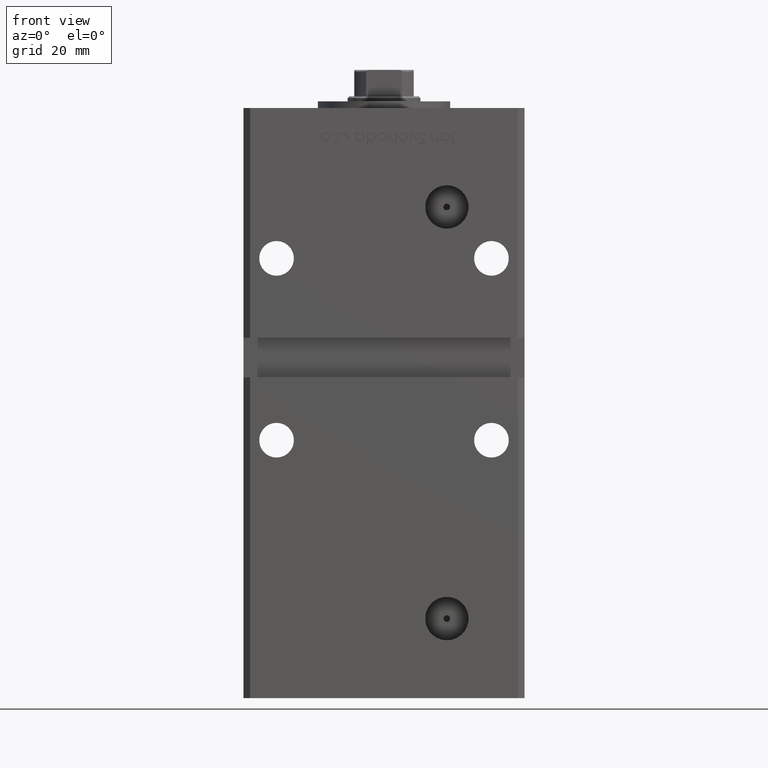
[diagram: clean part render]
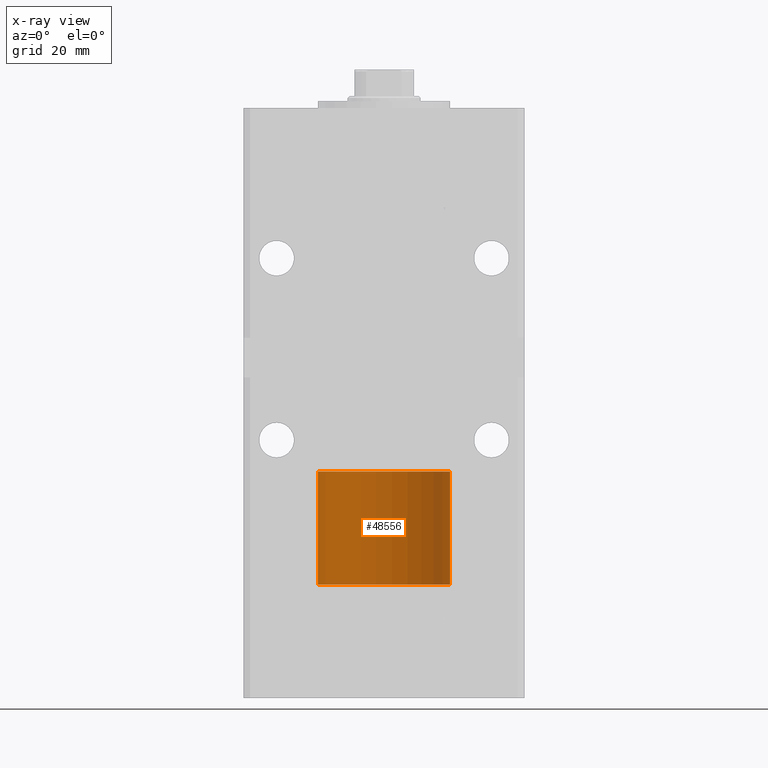
[diagram: x-ray — body ghosted, one internal face saturated and labeled with its STEP entity id]
A machine part, front view, then the same camera in x-ray: the body is ghosted and one INTERNAL B-rep face — a face not visible from any outside direction — is saturated and labeled: STEP entity #48556.
In plain terms, the highlighted cylindrical surface (partial cylindrical patch) has radius 20 mm, axis along (-0, -0, -1).
Its self-contained STEP definition (entity closure, byte-faithful):
#2169 = CARTESIAN_POINT ( 'NONE',  ( 20.00000000000000000, 2.449293598294706513E-15, 34.25000000000000000 ) ) ;
#4057 = DIRECTION ( 'NONE',  ( 0.000000000000000000, 0.000000000000000000, 1.000000000000000000 ) ) ;
#5654 = VERTEX_POINT ( 'NONE', #37147 ) ;
#7299 = EDGE_CURVE ( 'NONE', #5654, #46477, #40404, .T. ) ;
#10466 = VERTEX_POINT ( 'NONE', #49921 ) ;
#11993 = CIRCLE ( 'NONE', #16291, 20.00000000000000000 ) ;
#14292 = VECTOR ( 'NONE', #15404, 1000.000000000000000 ) ;
#15376 = CARTESIAN_POINT ( 'NONE',  ( 20.00000000000000000, 2.449293598294706513E-15, 34.25000000000000000 ) ) ;
#15404 = DIRECTION ( 'NONE',  ( -0.000000000000000000, -0.000000000000000000, -1.000000000000000000 ) ) ;
#16291 = AXIS2_PLACEMENT_3D ( 'NONE', #29176, #37764, #41535 ) ;
#16953 = VERTEX_POINT ( 'NONE', #2169 ) ;
#18681 = EDGE_LOOP ( 'NONE', ( #51628, #37257, #38012, #41700 ) ) ;
#19181 = CARTESIAN_POINT ( 'NONE',  ( -20.00000000000000000, 0.000000000000000000, 34.25000000000000000 ) ) ;
#19625 = DIRECTION ( 'NONE',  ( -0.000000000000000000, -0.000000000000000000, -1.000000000000000000 ) ) ;
#22081 = CIRCLE ( 'NONE', #41807, 20.00000000000000000 ) ;
#23720 = LINE ( 'NONE', #15376, #41549 ) ;
#23981 = DIRECTION ( 'NONE',  ( 1.000000000000000000, 0.000000000000000000, 0.000000000000000000 ) ) ;
#24442 = DIRECTION ( 'NONE',  ( -1.000000000000000000, 0.000000000000000000, 0.000000000000000000 ) ) ;
#25099 = EDGE_CURVE ( 'NONE', #16953, #5654, #11993, .T. ) ;
#28541 = CARTESIAN_POINT ( 'NONE',  ( 0.000000000000000000, 0.000000000000000000, 0.000000000000000000 ) ) ;
#29176 = CARTESIAN_POINT ( 'NONE',  ( 0.000000000000000000, 0.000000000000000000, 34.25000000000000000 ) ) ;
#31993 = FACE_OUTER_BOUND ( 'NONE', #18681, .T. ) ;
#32521 = CARTESIAN_POINT ( 'NONE',  ( 0.000000000000000000, 0.000000000000000000, 34.25000000000000000 ) ) ;
#32583 = DIRECTION ( 'NONE',  ( -0.000000000000000000, -0.000000000000000000, -1.000000000000000000 ) ) ;
#36059 = CARTESIAN_POINT ( 'NONE',  ( -20.00000000000000000, 0.000000000000000000, 0.000000000000000000 ) ) ;
#37147 = CARTESIAN_POINT ( 'NONE',  ( -20.00000000000000000, 0.000000000000000000, 34.25000000000000000 ) ) ;
#37257 = ORIENTED_EDGE ( 'NONE', *, *, #40573, .T. ) ;
#37764 = DIRECTION ( 'NONE',  ( 0.000000000000000000, 0.000000000000000000, 1.000000000000000000 ) ) ;
#38012 = ORIENTED_EDGE ( 'NONE', *, *, #47186, .T. ) ;
#40044 = CYLINDRICAL_SURFACE ( 'NONE', #42735, 20.00000000000000000 ) ;
#40404 = LINE ( 'NONE', #19181, #14292 ) ;
#40573 = EDGE_CURVE ( 'NONE', #16953, #10466, #23720, .T. ) ;
#41535 = DIRECTION ( 'NONE',  ( 1.000000000000000000, 0.000000000000000000, 0.000000000000000000 ) ) ;
#41549 = VECTOR ( 'NONE', #32583, 1000.000000000000000 ) ;
#41700 = ORIENTED_EDGE ( 'NONE', *, *, #7299, .F. ) ;
#41807 = AXIS2_PLACEMENT_3D ( 'NONE', #28541, #4057, #23981 ) ;
#42735 = AXIS2_PLACEMENT_3D ( 'NONE', #32521, #19625, #24442 ) ;
#46477 = VERTEX_POINT ( 'NONE', #36059 ) ;
#47186 = EDGE_CURVE ( 'NONE', #10466, #46477, #22081, .T. ) ;
#48556 = ADVANCED_FACE ( 'NONE', ( #31993 ), #40044, .T. ) ;
#49921 = CARTESIAN_POINT ( 'NONE',  ( 20.00000000000000000, 2.449293598294706513E-15, 0.000000000000000000 ) ) ;
#51628 = ORIENTED_EDGE ( 'NONE', *, *, #25099, .F. ) ;